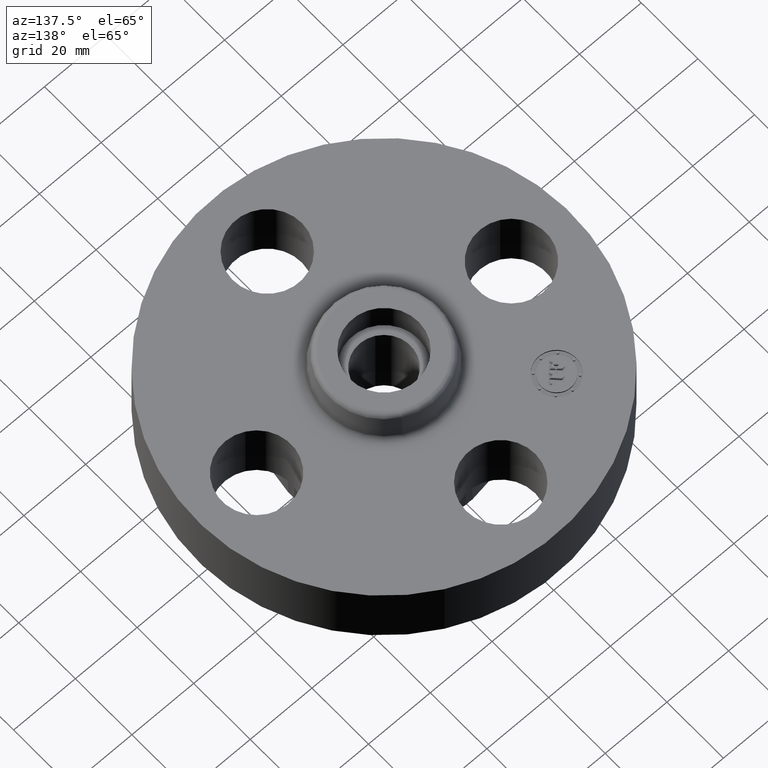
[diagram: clean part render]
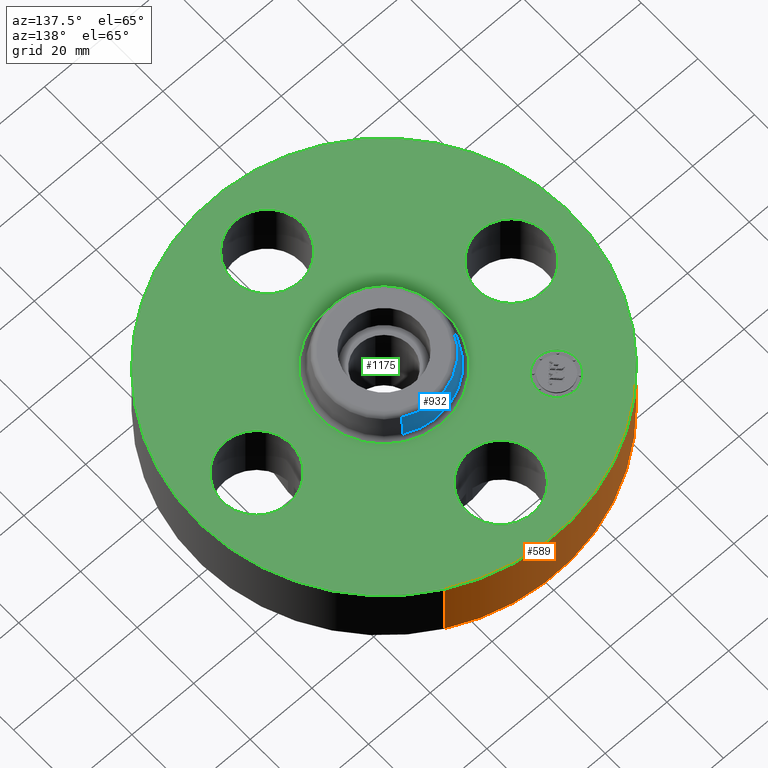
[diagram: same view with three faces highlighted in distinct colors, each labeled with its STEP entity id]
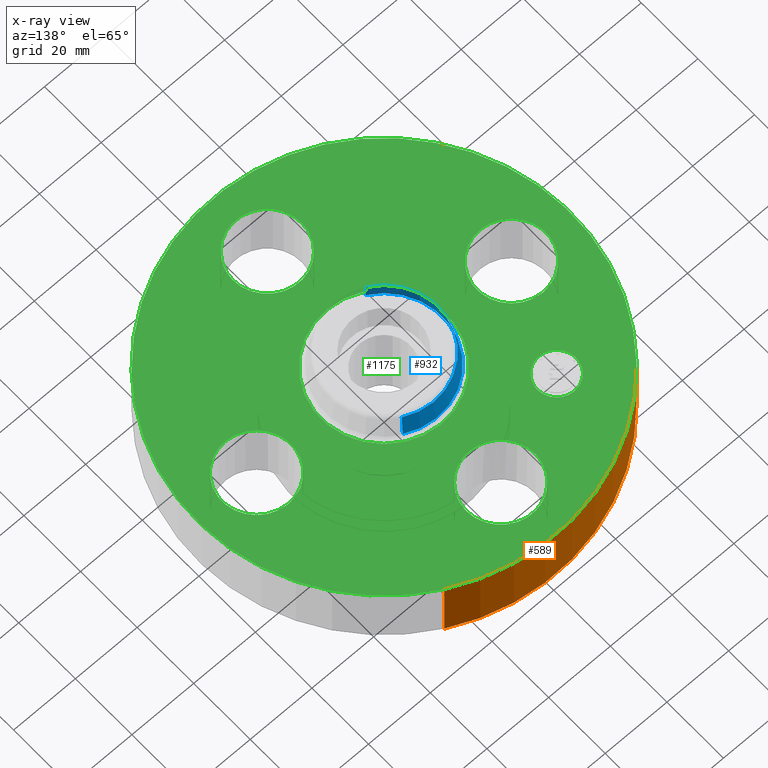
[diagram: x-ray of the same camera — body ghosted, the three highlighted faces saturated]
A machine part, auxiliary view with three faces highlighted in distinct colors.
The next image is the same camera in x-ray (body ghosted, the three faces saturated) — at least one of them is partly hidden behind the body in this view.
Their STEP definitions:

[orange] entity #589 — the highlighted cylindrical surface (partial cylindrical patch) has radius 60.325 mm, axis along (0, 0, -1).
#446=AXIS2_PLACEMENT_3D('Circle Axis2P3D',#444,#445,$) ;
#562=AXIS2_PLACEMENT_3D('Cylinder Axis2P3D',#559,#560,#561) ;
#573=AXIS2_PLACEMENT_3D('Circle Axis2P3D',#571,#572,$) ;
#444=CARTESIAN_POINT('Axis2P3D Location',(0.,0.,0.)) ;
#448=CARTESIAN_POINT('Vertex',(-1.13863565419,-2.0842585845,1.39870617276E-016)) ;
#450=CARTESIAN_POINT('Vertex',(1.13863565419,2.0842585845,1.39870617276E-016)) ;
#559=CARTESIAN_POINT('Axis2P3D Location',(0.,0.,0.500000000002)) ;
#564=CARTESIAN_POINT('Line Origine',(-1.13863565419,-2.0842585845,0.440000000002)) ;
#568=CARTESIAN_POINT('Vertex',(-1.13863565419,-2.0842585845,0.880000000004)) ;
#571=CARTESIAN_POINT('Axis2P3D Location',(0.,0.,0.880000000004)) ;
#575=CARTESIAN_POINT('Vertex',(1.13863565419,2.0842585845,0.880000000004)) ;
#578=CARTESIAN_POINT('Line Origine',(1.13863565419,2.0842585845,0.440000000002)) ;
#445=DIRECTION('Axis2P3D Direction',(0.,0.,-0.0393700787402)) ;
#560=DIRECTION('Axis2P3D Direction',(0.,0.,-0.0393700787402)) ;
#561=DIRECTION('Axis2P3D XDirection',(0.0188750212049,0.0345504945626,0.)) ;
#565=DIRECTION('Vector Direction',(0.,0.,-0.0393700787402)) ;
#572=DIRECTION('Axis2P3D Direction',(0.,0.,-0.0393700787402)) ;
#579=DIRECTION('Vector Direction',(0.,0.,-0.0393700787402)) ;
#566=VECTOR('Line Direction',#565,0.0393700787402) ;
#580=VECTOR('Line Direction',#579,0.0393700787402) ;
#584=ORIENTED_EDGE('',*,*,#452,.F.) ;
#585=ORIENTED_EDGE('',*,*,#570,.T.) ;
#586=ORIENTED_EDGE('',*,*,#577,.T.) ;
#587=ORIENTED_EDGE('',*,*,#582,.F.) ;
#589=ADVANCED_FACE('PartBody',(#588),#563,.T.) ;
#447=CIRCLE('generated circle',#446,2.37500000001) ;
#574=CIRCLE('generated circle',#573,2.37500000001) ;
#563=CYLINDRICAL_SURFACE('generated cylinder',#562,2.37500000001) ;
#452=EDGE_CURVE('',#449,#451,#447,.T.) ;
#570=EDGE_CURVE('',#449,#569,#567,.F.) ;
#577=EDGE_CURVE('',#569,#576,#574,.T.) ;
#582=EDGE_CURVE('',#451,#576,#581,.F.) ;
#583=EDGE_LOOP('',(#584,#585,#586,#587)) ;
#588=FACE_OUTER_BOUND('',#583,.T.) ;
#567=LINE('Line',#564,#566) ;
#581=LINE('Line',#578,#580) ;
#449=VERTEX_POINT('',#448) ;
#451=VERTEX_POINT('',#450) ;
#569=VERTEX_POINT('',#568) ;
#576=VERTEX_POINT('',#575) ;

[blue] entity #932 — the highlighted conical surface has half-angle 10 deg.
#837=AXIS2_PLACEMENT_3D('Circle Axis2P3D',#835,#836,$) ;
#893=AXIS2_PLACEMENT_3D('Cone Axis2P3D',#890,#891,#892) ;
#923=AXIS2_PLACEMENT_3D('Circle Axis2P3D',#921,#922,$) ;
#808=CARTESIAN_POINT('Vertex',(0.355377782267,0.650514667009,0.929581109344)) ;
#815=CARTESIAN_POINT('Vertex',(-0.355377782267,-0.650514667009,0.929581109344)) ;
#835=CARTESIAN_POINT('Axis2P3D Location',(0.,0.,0.929581109344)) ;
#890=CARTESIAN_POINT('Axis2P3D Location',(0.,0.,1.20041889066)) ;
#895=CARTESIAN_POINT('Line Origine',(0.343930057281,0.62955974698,1.065)) ;
#899=CARTESIAN_POINT('Vertex',(0.332482332294,0.608604826951,1.20041889066)) ;
#906=CARTESIAN_POINT('Vertex',(-0.332482332294,-0.608604826951,1.20041889066)) ;
#909=CARTESIAN_POINT('Line Origine',(-0.343930057281,-0.62955974698,1.065)) ;
#921=CARTESIAN_POINT('Axis2P3D Location',(0.,0.,1.20041889066)) ;
#836=DIRECTION('Axis2P3D Direction',(0.,0.,-0.0393700787402)) ;
#891=DIRECTION('Axis2P3D Direction',(0.,0.,-0.0393700787402)) ;
#892=DIRECTION('Axis2P3D XDirection',(-0.0188750212049,-0.0345504945626,0.)) ;
#896=DIRECTION('Vector Direction',(0.00327761303565,0.00599963041829,-0.03877195878)) ;
#910=DIRECTION('Vector Direction',(-0.00327761303565,-0.00599963041829,-0.03877195878)) ;
#922=DIRECTION('Axis2P3D Direction',(0.,0.,-0.0393700787402)) ;
#897=VECTOR('Line Direction',#896,0.0393700787402) ;
#911=VECTOR('Line Direction',#910,0.0393700787402) ;
#927=ORIENTED_EDGE('',*,*,#839,.F.) ;
#928=ORIENTED_EDGE('',*,*,#913,.T.) ;
#929=ORIENTED_EDGE('',*,*,#925,.T.) ;
#930=ORIENTED_EDGE('',*,*,#901,.F.) ;
#932=ADVANCED_FACE('PartBody',(#931),#894,.T.) ;
#838=CIRCLE('generated circle',#837,0.741257512693) ;
#924=CIRCLE('generated circle',#923,0.693501504451) ;
#894=CONICAL_SURFACE('Cone',#893,0.693501504451,0.174532925199) ;
#839=EDGE_CURVE('',#816,#809,#838,.T.) ;
#901=EDGE_CURVE('',#809,#900,#898,.F.) ;
#913=EDGE_CURVE('',#816,#907,#912,.F.) ;
#925=EDGE_CURVE('',#907,#900,#924,.T.) ;
#926=EDGE_LOOP('',(#927,#928,#929,#930)) ;
#931=FACE_OUTER_BOUND('',#926,.T.) ;
#898=LINE('Line',#895,#897) ;
#912=LINE('Line',#909,#911) ;
#809=VERTEX_POINT('',#808) ;
#816=VERTEX_POINT('',#815) ;
#900=VERTEX_POINT('',#899) ;
#907=VERTEX_POINT('',#906) ;

[green] entity #1175 — the highlighted planar face has unit normal (0, 0, -1).
#573=AXIS2_PLACEMENT_3D('Circle Axis2P3D',#571,#572,$) ;
#592=AXIS2_PLACEMENT_3D('Circle Axis2P3D',#590,#591,$) ;
#623=AXIS2_PLACEMENT_3D('Circle Axis2P3D',#621,#622,$) ;
#654=AXIS2_PLACEMENT_3D('Circle Axis2P3D',#652,#653,$) ;
#685=AXIS2_PLACEMENT_3D('Circle Axis2P3D',#683,#684,$) ;
#716=AXIS2_PLACEMENT_3D('Circle Axis2P3D',#714,#715,$) ;
#728=AXIS2_PLACEMENT_3D('Circle Axis2P3D',#726,#727,$) ;
#744=AXIS2_PLACEMENT_3D('Circle Axis2P3D',#742,#743,$) ;
#760=AXIS2_PLACEMENT_3D('Circle Axis2P3D',#758,#759,$) ;
#776=AXIS2_PLACEMENT_3D('Circle Axis2P3D',#774,#775,$) ;
#797=AXIS2_PLACEMENT_3D('Circle Axis2P3D',#795,#796,$) ;
#832=AXIS2_PLACEMENT_3D('Circle Axis2P3D',#830,#831,$) ;
#1131=AXIS2_PLACEMENT_3D('Plane Axis2P3D',#1128,#1129,#1130) ;
#1159=AXIS2_PLACEMENT_3D('Circle Axis2P3D',#1157,#1158,$) ;
#1168=AXIS2_PLACEMENT_3D('Circle Axis2P3D',#1166,#1167,$) ;
#568=CARTESIAN_POINT('Vertex',(-1.13863565419,-2.0842585845,0.880000000004)) ;
#571=CARTESIAN_POINT('Axis2P3D Location',(0.,0.,0.880000000004)) ;
#575=CARTESIAN_POINT('Vertex',(1.13863565419,2.0842585845,0.880000000004)) ;
#590=CARTESIAN_POINT('Axis2P3D Location',(0.,0.,0.880000000004)) ;
#611=CARTESIAN_POINT('Vertex',(0.386136327233,-1.83594723699,0.880000000004)) ;
#618=CARTESIAN_POINT('Vertex',(-0.386136327233,-1.41405276302,0.880000000004)) ;
#621=CARTESIAN_POINT('Axis2P3D Location',(1.99005104862E-016,-1.62500000001,0.880000000004)) ;
#642=CARTESIAN_POINT('Vertex',(-1.83594723699,-0.386136327233,0.880000000004)) ;
#649=CARTESIAN_POINT('Vertex',(-1.41405276302,0.386136327233,0.880000000004)) ;
#652=CARTESIAN_POINT('Axis2P3D Location',(-1.62500000001,-2.98507657293E-016,0.880000000004)) ;
#673=CARTESIAN_POINT('Vertex',(-0.386136327233,1.83594723699,0.880000000004)) ;
#680=CARTESIAN_POINT('Vertex',(0.386136327233,1.41405276302,0.880000000004)) ;
#683=CARTESIAN_POINT('Axis2P3D Location',(0.,1.62500000001,0.880000000004)) ;
#704=CARTESIAN_POINT('Vertex',(1.83594723699,0.386136327233,0.880000000004)) ;
#711=CARTESIAN_POINT('Vertex',(1.41405276302,-0.386136327233,0.880000000004)) ;
#714=CARTESIAN_POINT('Axis2P3D Location',(1.62500000001,-1.8023868212E-016,0.880000000004)) ;
#726=CARTESIAN_POINT('Axis2P3D Location',(1.62500000001,-1.8023868212E-016,0.880000000004)) ;
#742=CARTESIAN_POINT('Axis2P3D Location',(0.,1.62500000001,0.880000000004)) ;
#758=CARTESIAN_POINT('Axis2P3D Location',(-1.62500000001,-2.98507657293E-016,0.880000000004)) ;
#774=CARTESIAN_POINT('Axis2P3D Location',(1.99005104862E-016,-1.62500000001,0.880000000004)) ;
#795=CARTESIAN_POINT('Axis2P3D Location',(0.,0.,0.880000000004)) ;
#799=CARTESIAN_POINT('Vertex',(0.383706301512,0.702369673661,0.880000000004)) ;
#801=CARTESIAN_POINT('Vertex',(-0.383706301512,-0.702369673661,0.880000000004)) ;
#830=CARTESIAN_POINT('Axis2P3D Location',(0.,0.,0.880000000004)) ;
#1128=CARTESIAN_POINT('Axis2P3D Location',(0.,2.37500000001,0.880000000004)) ;
#1157=CARTESIAN_POINT('Axis2P3D Location',(-1.14904851943,1.14904851943,0.880000000004)) ;
#1161=CARTESIAN_POINT('Vertex',(-1.32405744778,0.974039591088,0.880000000004)) ;
#1163=CARTESIAN_POINT('Vertex',(-0.974039591088,1.32405744778,0.880000000004)) ;
#1166=CARTESIAN_POINT('Axis2P3D Location',(-1.14904851943,1.14904851943,0.880000000004)) ;
#572=DIRECTION('Axis2P3D Direction',(0.,0.,-0.0393700787402)) ;
#591=DIRECTION('Axis2P3D Direction',(0.,0.,-0.0393700787402)) ;
#622=DIRECTION('Axis2P3D Direction',(-0.,0.,-0.0393700787402)) ;
#653=DIRECTION('Axis2P3D Direction',(0.,0.,-0.0393700787402)) ;
#684=DIRECTION('Axis2P3D Direction',(0.,-0.,-0.0393700787402)) ;
#715=DIRECTION('Axis2P3D Direction',(0.,-0.,-0.0393700787402)) ;
#727=DIRECTION('Axis2P3D Direction',(0.,-0.,-0.0393700787402)) ;
#743=DIRECTION('Axis2P3D Direction',(0.,-0.,-0.0393700787402)) ;
#759=DIRECTION('Axis2P3D Direction',(0.,0.,-0.0393700787402)) ;
#775=DIRECTION('Axis2P3D Direction',(-0.,0.,-0.0393700787402)) ;
#796=DIRECTION('Axis2P3D Direction',(0.,0.,-0.0393700787402)) ;
#831=DIRECTION('Axis2P3D Direction',(0.,0.,-0.0393700787402)) ;
#1129=DIRECTION('Axis2P3D Direction',(0.,0.,-0.0393700787402)) ;
#1130=DIRECTION('Axis2P3D XDirection',(0.0393700787402,0.,0.)) ;
#1158=DIRECTION('Axis2P3D Direction',(0.,0.,-0.0393700787402)) ;
#1167=DIRECTION('Axis2P3D Direction',(0.,0.,-0.0393700787402)) ;
#1134=ORIENTED_EDGE('',*,*,#594,.F.) ;
#1135=ORIENTED_EDGE('',*,*,#577,.F.) ;
#1138=ORIENTED_EDGE('',*,*,#687,.T.) ;
#1139=ORIENTED_EDGE('',*,*,#746,.T.) ;
#1142=ORIENTED_EDGE('',*,*,#834,.T.) ;
#1143=ORIENTED_EDGE('',*,*,#803,.T.) ;
#1146=ORIENTED_EDGE('',*,*,#730,.T.) ;
#1147=ORIENTED_EDGE('',*,*,#718,.T.) ;
#1150=ORIENTED_EDGE('',*,*,#778,.T.) ;
#1151=ORIENTED_EDGE('',*,*,#625,.T.) ;
#1154=ORIENTED_EDGE('',*,*,#762,.T.) ;
#1155=ORIENTED_EDGE('',*,*,#656,.T.) ;
#1172=ORIENTED_EDGE('',*,*,#1165,.T.) ;
#1173=ORIENTED_EDGE('',*,*,#1170,.T.) ;
#1140=FACE_BOUND('',#1137,.T.) ;
#1144=FACE_BOUND('',#1141,.T.) ;
#1148=FACE_BOUND('',#1145,.T.) ;
#1152=FACE_BOUND('',#1149,.T.) ;
#1156=FACE_BOUND('',#1153,.T.) ;
#1174=FACE_BOUND('',#1171,.T.) ;
#1175=ADVANCED_FACE('PartBody',(#1136,#1140,#1144,#1148,#1152,#1156,#1174),#1132,.F.) ;
#574=CIRCLE('generated circle',#573,2.37500000001) ;
#593=CIRCLE('generated circle',#592,2.37500000001) ;
#624=CIRCLE('generated circle',#623,0.440000000002) ;
#655=CIRCLE('generated circle',#654,0.440000000002) ;
#686=CIRCLE('generated circle',#685,0.440000000002) ;
#717=CIRCLE('generated circle',#716,0.440000000002) ;
#729=CIRCLE('generated circle',#728,0.440000000002) ;
#745=CIRCLE('generated circle',#744,0.440000000002) ;
#761=CIRCLE('generated circle',#760,0.440000000002) ;
#777=CIRCLE('generated circle',#776,0.440000000002) ;
#798=CIRCLE('generated circle',#797,0.800345977874) ;
#833=CIRCLE('generated circle',#832,0.800345977874) ;
#1160=CIRCLE('generated circle',#1159,0.247500000001) ;
#1169=CIRCLE('generated circle',#1168,0.247500000001) ;
#577=EDGE_CURVE('',#569,#576,#574,.T.) ;
#594=EDGE_CURVE('',#576,#569,#593,.T.) ;
#625=EDGE_CURVE('',#612,#619,#624,.T.) ;
#656=EDGE_CURVE('',#643,#650,#655,.T.) ;
#687=EDGE_CURVE('',#674,#681,#686,.T.) ;
#718=EDGE_CURVE('',#705,#712,#717,.T.) ;
#730=EDGE_CURVE('',#712,#705,#729,.T.) ;
#746=EDGE_CURVE('',#681,#674,#745,.T.) ;
#762=EDGE_CURVE('',#650,#643,#761,.T.) ;
#778=EDGE_CURVE('',#619,#612,#777,.T.) ;
#803=EDGE_CURVE('',#800,#802,#798,.T.) ;
#834=EDGE_CURVE('',#802,#800,#833,.T.) ;
#1165=EDGE_CURVE('',#1162,#1164,#1160,.T.) ;
#1170=EDGE_CURVE('',#1164,#1162,#1169,.T.) ;
#1133=EDGE_LOOP('',(#1134,#1135)) ;
#1137=EDGE_LOOP('',(#1138,#1139)) ;
#1141=EDGE_LOOP('',(#1142,#1143)) ;
#1145=EDGE_LOOP('',(#1146,#1147)) ;
#1149=EDGE_LOOP('',(#1150,#1151)) ;
#1153=EDGE_LOOP('',(#1154,#1155)) ;
#1171=EDGE_LOOP('',(#1172,#1173)) ;
#1136=FACE_OUTER_BOUND('',#1133,.T.) ;
#1132=PLANE('',#1131) ;
#569=VERTEX_POINT('',#568) ;
#576=VERTEX_POINT('',#575) ;
#612=VERTEX_POINT('',#611) ;
#619=VERTEX_POINT('',#618) ;
#643=VERTEX_POINT('',#642) ;
#650=VERTEX_POINT('',#649) ;
#674=VERTEX_POINT('',#673) ;
#681=VERTEX_POINT('',#680) ;
#705=VERTEX_POINT('',#704) ;
#712=VERTEX_POINT('',#711) ;
#800=VERTEX_POINT('',#799) ;
#802=VERTEX_POINT('',#801) ;
#1162=VERTEX_POINT('',#1161) ;
#1164=VERTEX_POINT('',#1163) ;